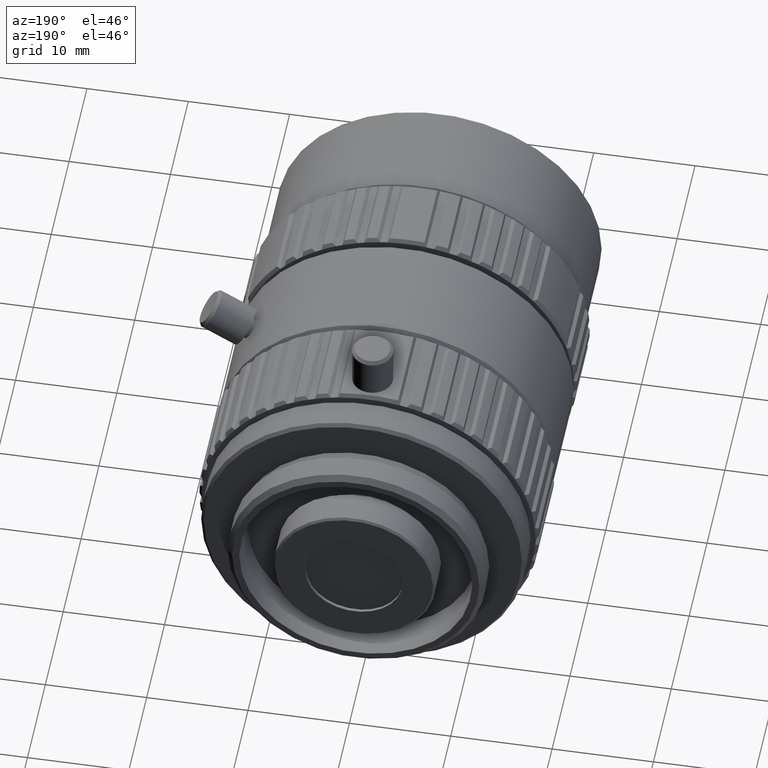
[diagram: clean part render]
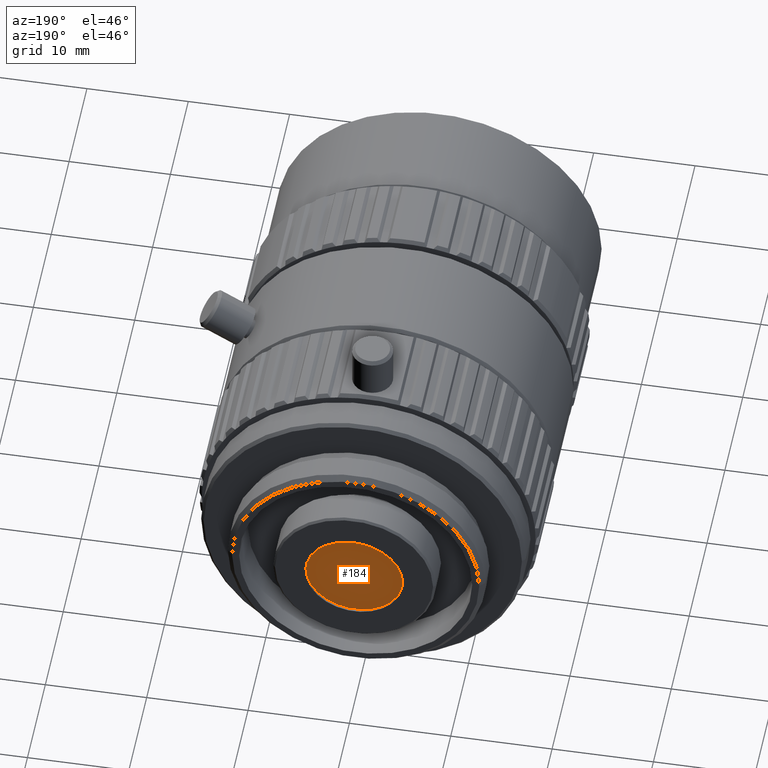
[diagram: same view with one face highlighted and labeled with its STEP entity id]
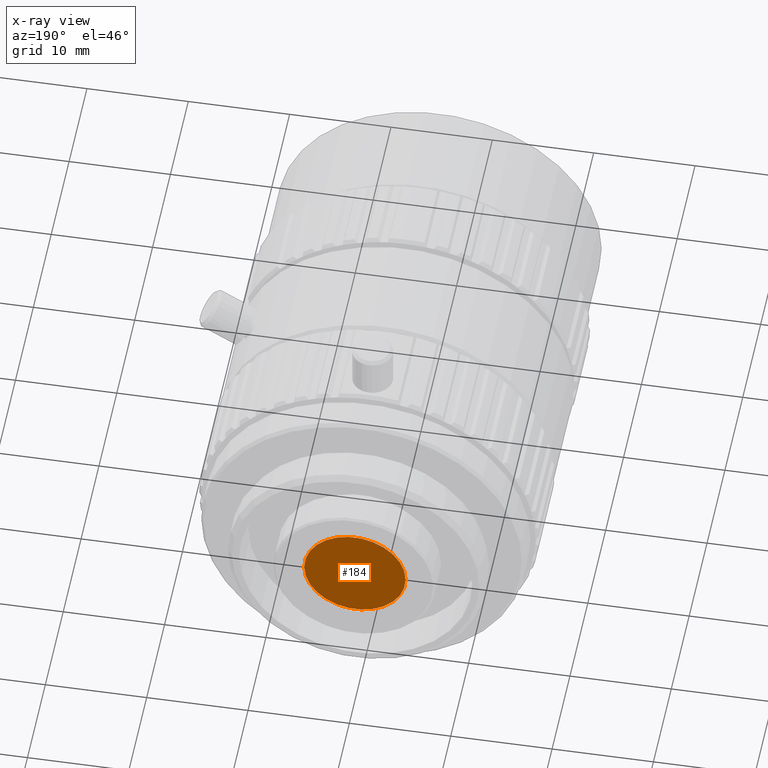
[diagram: x-ray of the same camera — body ghosted, the highlighted face saturated]
A machine part, auxiliary view. The second image highlights one B-rep face of the part: STEP entity #184.
The next image is the same camera in x-ray: the body ghosted, the highlighted face saturated — about 0% of this face is hidden behind the body in this view.
In plain terms, the highlighted spherical surface has radius 1070 mm.
Its self-contained STEP definition (entity closure, byte-faithful):
#184=ADVANCED_FACE('0:10062',(#1382),#1383,.F.);
#1382=FACE_OUTER_BOUND('',#3713,.T.);
#1383=SPHERICAL_SURFACE('',#3714,1.07);
#3713=EDGE_LOOP('',(#6310,#6311));
#3714=AXIS2_PLACEMENT_3D('',#6312,#6313,#6314);
#6310=ORIENTED_EDGE('',*,*,#14726,.F.);
#6311=ORIENTED_EDGE('',*,*,#14694,.F.);
#6312=CARTESIAN_POINT('',(6.5786465630515E-17,1.056884,-6.5442443131225E-16));
#6313=DIRECTION('',(-1.0,6.12303176911189E-17,0.0));
#6314=DIRECTION('',(0.0,0.0,1.0));
#14694=EDGE_CURVE('0:11640',#17426,#17428,#17429,.T.);
#14726=EDGE_CURVE('0:11640',#17428,#17426,#17479,.T.);
#17426=VERTEX_POINT('',#21663);
#17428=VERTEX_POINT('NONE',#21666);
#17429=CIRCLE('',#21667,0.00500000000000034);
#17479=CIRCLE('',#21793,0.00500000000000034);
#21663=CARTESIAN_POINT('',(0.00500000000000034,-0.0131043176932353,-4.76037735141153E-17));
#21666=CARTESIAN_POINT('',(-0.00500000000000034,-0.0131043176932354,-4.76037735141153E-17));
#21667=AXIS2_PLACEMENT_3D('',#26675,#26676,#26677);
#21793=AXIS2_PLACEMENT_3D('',#26739,#26740,#26741);
#26675=CARTESIAN_POINT('',(2.70741012372399E-19,-0.0131043176932354,-4.8216096913689E-17));
#26676=DIRECTION('',(0.0,-1.0,0.0));
#26677=DIRECTION('',(1.0,0.0,0.0));
#26739=CARTESIAN_POINT('',(2.70741012372399E-19,-0.0131043176932354,-4.8216096913689E-17));
#26740=DIRECTION('',(0.0,-1.0,0.0));
#26741=DIRECTION('',(1.0,0.0,0.0));